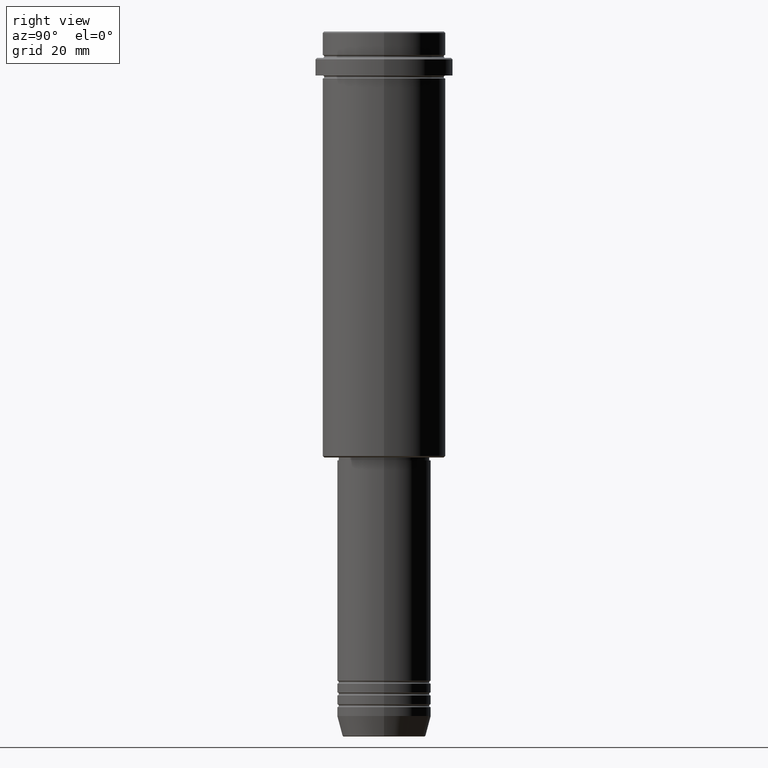
[diagram: clean part render]
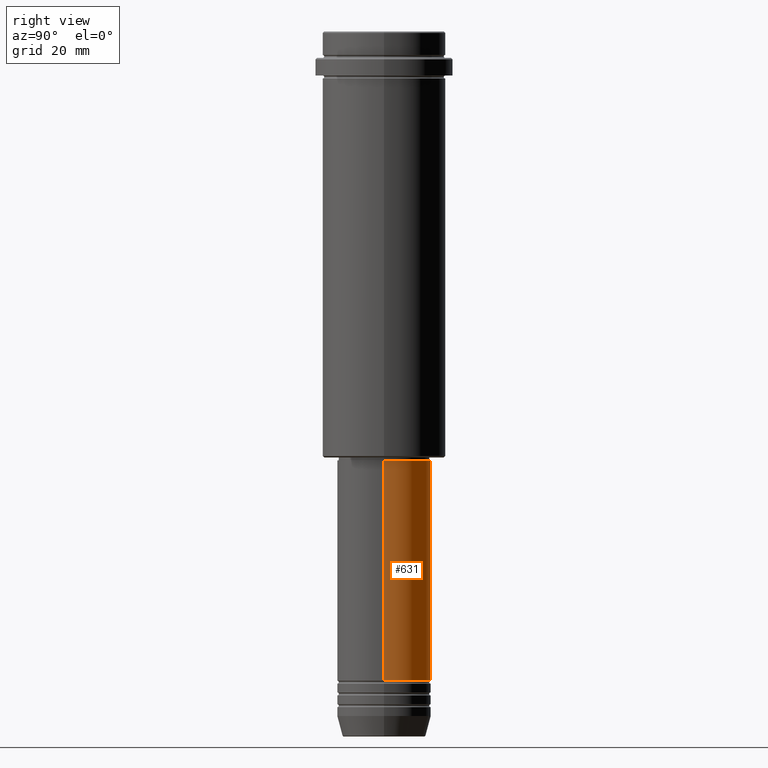
[diagram: same view with one face highlighted and labeled with its STEP entity id]
A machine part, right view. The second image highlights one B-rep face of the part: STEP entity #631.
In plain terms, the highlighted cylindrical surface (partial cylindrical patch) has radius 16 mm, axis along (-0, -0, 1).
Its self-contained STEP definition (entity closure, byte-faithful):
#40 = DIRECTION ( 'NONE',  ( -0.000000000000000000, -0.000000000000000000, 1.000000000000000000 ) ) ;
#45 = LINE ( 'NONE', #134, #131 ) ;
#85 = EDGE_CURVE ( 'NONE', #201, #835, #837, .T. ) ;
#114 = DIRECTION ( 'NONE',  ( 1.000000000000000000, 0.000000000000000000, 0.000000000000000000 ) ) ;
#131 = VECTOR ( 'NONE', #40, 1000.000000000000000 ) ;
#134 = CARTESIAN_POINT ( 'NONE',  ( 16.00000000000000000, 0.000000000000000000, 0.000000000000000000 ) ) ;
#190 = CARTESIAN_POINT ( 'NONE',  ( 0.000000000000000000, 0.000000000000000000, -220.9999999999999147 ) ) ;
#201 = VERTEX_POINT ( 'NONE', #320 ) ;
#262 = VECTOR ( 'NONE', #521, 1000.000000000000000 ) ;
#312 = ORIENTED_EDGE ( 'NONE', *, *, #390, .T. ) ;
#320 = CARTESIAN_POINT ( 'NONE',  ( -16.00000000000000000, 1.959434878635765131E-15, -220.9999999999999147 ) ) ;
#390 = EDGE_CURVE ( 'NONE', #1111, #201, #935, .T. ) ;
#405 = DIRECTION ( 'NONE',  ( 1.000000000000000000, 0.000000000000000000, 0.000000000000000000 ) ) ;
#453 = CARTESIAN_POINT ( 'NONE',  ( 16.00000000000000355, 0.000000000000000000, -146.0000000000000284 ) ) ;
#517 = VERTEX_POINT ( 'NONE', #453 ) ;
#521 = DIRECTION ( 'NONE',  ( -0.000000000000000000, -0.000000000000000000, 1.000000000000000000 ) ) ;
#538 = ORIENTED_EDGE ( 'NONE', *, *, #85, .T. ) ;
#555 = CARTESIAN_POINT ( 'NONE',  ( 0.000000000000000000, 0.000000000000000000, -146.0000000000000284 ) ) ;
#611 = CARTESIAN_POINT ( 'NONE',  ( -16.00000000000000355, 1.959434878635765526E-15, -146.0000000000000284 ) ) ;
#631 = ADVANCED_FACE ( 'NONE', ( #878 ), #691, .T. ) ;
#691 = CYLINDRICAL_SURFACE ( 'NONE', #802, 16.00000000000000000 ) ;
#704 = ORIENTED_EDGE ( 'NONE', *, *, #1390, .F. ) ;
#707 = CARTESIAN_POINT ( 'NONE',  ( 16.00000000000000000, 0.000000000000000000, -220.9999999999999147 ) ) ;
#802 = AXIS2_PLACEMENT_3D ( 'NONE', #895, #902, #1218 ) ;
#824 = AXIS2_PLACEMENT_3D ( 'NONE', #190, #1070, #405 ) ;
#835 = VERTEX_POINT ( 'NONE', #611 ) ;
#837 = LINE ( 'NONE', #920, #262 ) ;
#878 = FACE_OUTER_BOUND ( 'NONE', #1290, .T. ) ;
#895 = CARTESIAN_POINT ( 'NONE',  ( 0.000000000000000000, 0.000000000000000000, 0.000000000000000000 ) ) ;
#902 = DIRECTION ( 'NONE',  ( -0.000000000000000000, -0.000000000000000000, 1.000000000000000000 ) ) ;
#920 = CARTESIAN_POINT ( 'NONE',  ( -16.00000000000000000, 1.959434878635765131E-15, 0.000000000000000000 ) ) ;
#935 = CIRCLE ( 'NONE', #824, 16.00000000000000000 ) ;
#1070 = DIRECTION ( 'NONE',  ( -0.000000000000000000, -0.000000000000000000, 1.000000000000000000 ) ) ;
#1088 = DIRECTION ( 'NONE',  ( -0.000000000000000000, -0.000000000000000000, 1.000000000000000000 ) ) ;
#1111 = VERTEX_POINT ( 'NONE', #707 ) ;
#1113 = EDGE_CURVE ( 'NONE', #1111, #517, #45, .T. ) ;
#1152 = ORIENTED_EDGE ( 'NONE', *, *, #1113, .F. ) ;
#1218 = DIRECTION ( 'NONE',  ( 1.000000000000000000, 0.000000000000000000, 0.000000000000000000 ) ) ;
#1290 = EDGE_LOOP ( 'NONE', ( #312, #538, #704, #1152 ) ) ;
#1291 = AXIS2_PLACEMENT_3D ( 'NONE', #555, #1088, #114 ) ;
#1358 = CIRCLE ( 'NONE', #1291, 16.00000000000000355 ) ;
#1390 = EDGE_CURVE ( 'NONE', #517, #835, #1358, .T. ) ;